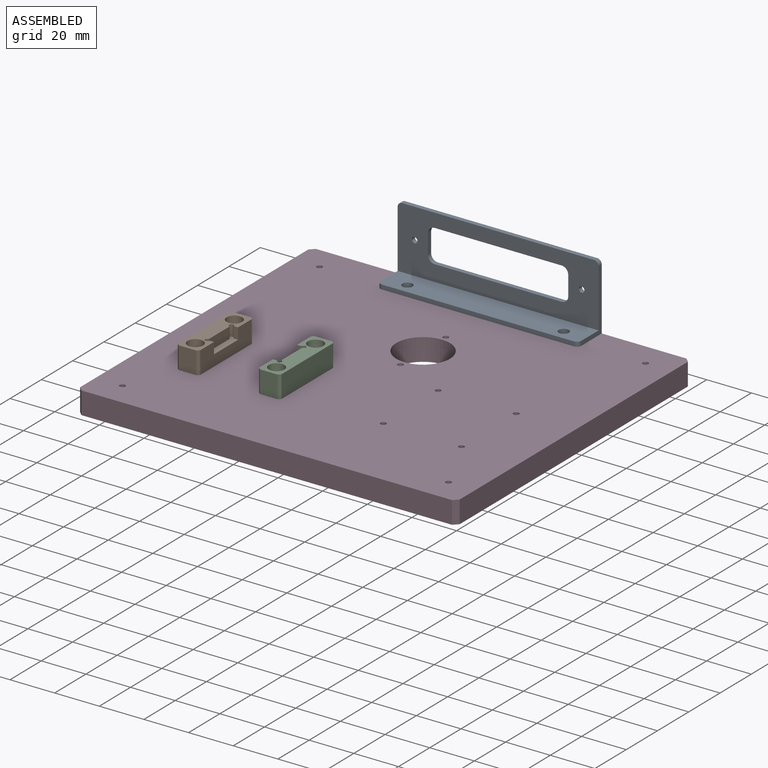
[diagram: assembled view]
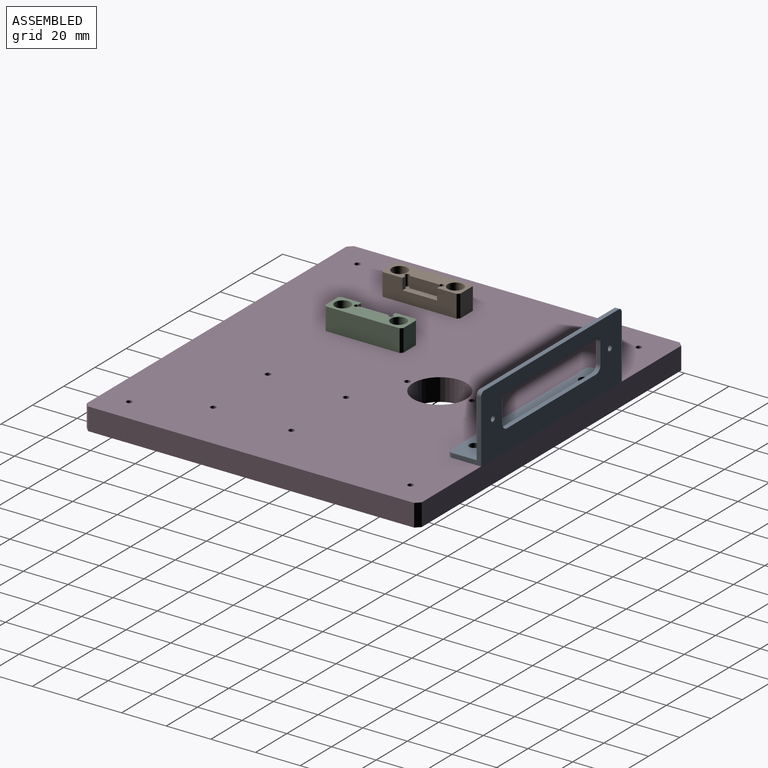
[diagram: assembled view, second angle]
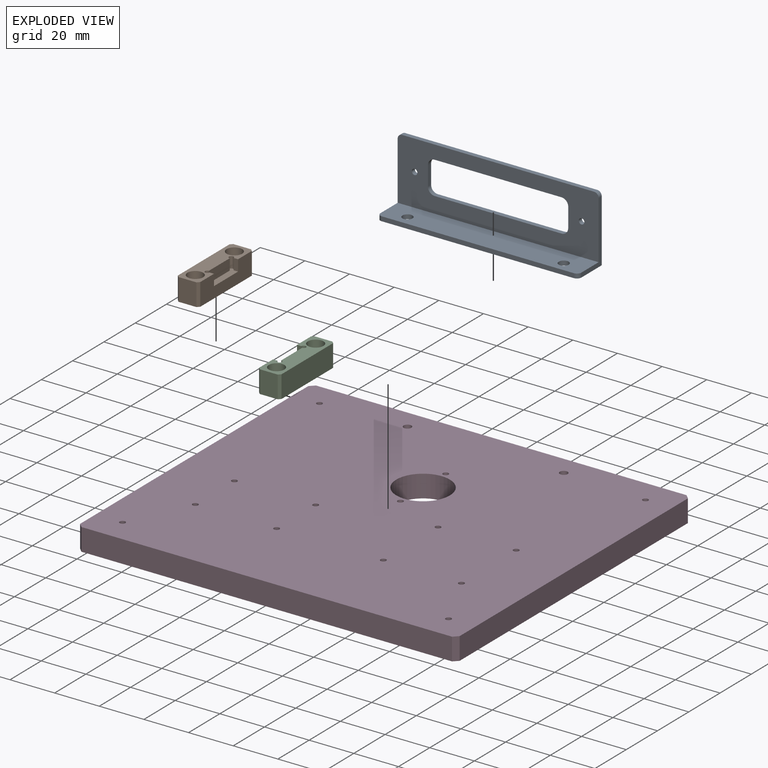
[diagram: exploded view]
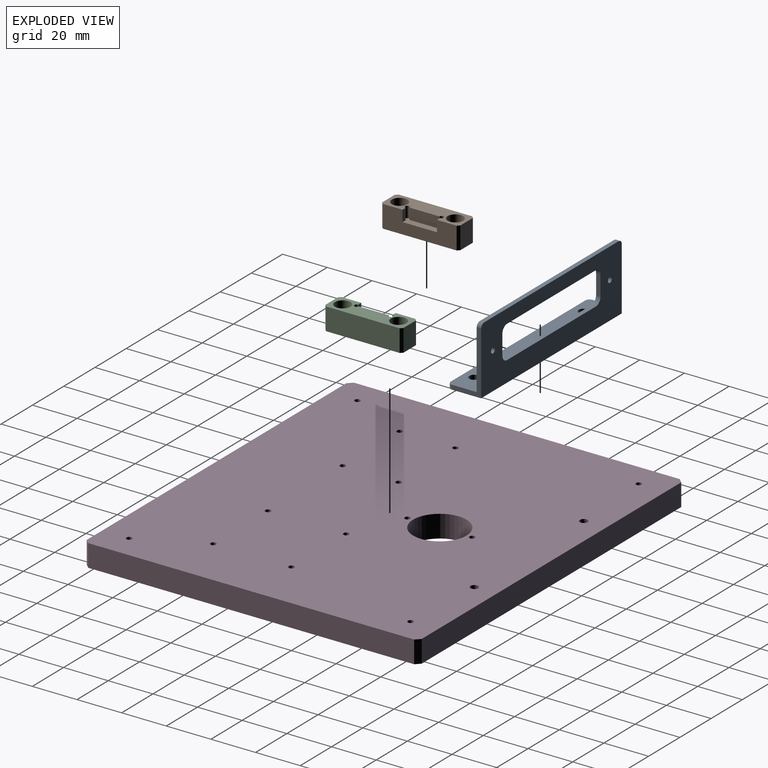
[diagram: exploded view, second angle]
ASSEMBLY  parts=4 mates=3
PART A: 24 faces, bbox 15x30x90 mm
  f0: plane 90x30mm, normal (-1,0,0), area 1773mm2, adj f2,f5,f6,f7,f8,f9,f10,f11
  f1: plane 90x28mm, normal (1,0,0), area 1593mm2, adj f4,f5,f6,f7,f8,f9,f10,f11
  f2: plane 90x15mm, normal (0,-1,0), area 1316.5mm2, adj f0,f3,f6,f7,f20,f21,f22,f23
  f3: plane 86x2mm, normal (1,0,0), area 172mm2, adj f2,f4,f22,f23
  f4: plane 90x13mm, normal (0,1,0), area 1136.5mm2, adj f1,f3,f6,f7,f20,f21,f22,f23
  f5: plane 86x2mm, normal (0,1,0), area 172mm2, adj f0,f1,f8,f9
  f6: plane 28x13mm, normal (0,0,1), area 78mm2, adj f0,f1,f2,f4,f9,f23
  f7: plane 28x13mm, normal (0,0,-1), area 78mm2, adj f0,f1,f2,f4,f8,f22
  f8: cylinder r=2mm len=2mm, axis (-1,0,0), area 6.3mm2, adj f0,f1,f5,f7
  f9: cylinder r=2mm len=2mm, axis (1,0,0), area 6.3mm2, adj f0,f1,f5,f6
  f10: plane 56.8x2mm, normal (0,-1,0), area 113.6mm2, adj f0,f1,f14,f17
  f11: plane 8.7x2mm, normal (0,0,1), area 17.4mm2, adj f0,f1,f14,f15
  f12: plane 56.8x2mm, normal (0,1,0), area 113.6mm2, adj f0,f1,f15,f16
  f13: plane 8.7x2mm, normal (0,0,-1), area 17.4mm2, adj f0,f1,f16,f17
  f14: cylinder r=3mm len=3mm, axis (-1,0,0), area 9.4mm2, adj f0,f1,f10,f11
  f15: cylinder r=3mm len=3mm, axis (1,0,0), area 9.4mm2, adj f0,f1,f11,f12
  f16: cylinder r=3mm len=3mm, axis (-1,0,0), area 9.4mm2, adj f0,f1,f12,f13
  f17: cylinder r=3mm len=3mm, axis (1,0,0), area 9.4mm2, adj f0,f1,f10,f13
  f18: cylinder r=1.25mm len=2.5mm, axis (-1,0,0), area 15.7mm2, adj f0,f1
  f19: cylinder r=1.25mm len=2.5mm, axis (-1,0,0), area 15.7mm2, adj f0,f1
  f20: cylinder r=2.25mm len=4.5mm, axis (0,1,0), area 28.3mm2, adj f2,f4
  f21: cylinder r=2.25mm len=4.5mm, axis (0,1,0), area 28.3mm2, adj f2,f4
  f22: cylinder r=2mm len=2mm, axis (0,1,0), area 6.3mm2, adj f2,f3,f4,f7
  f23: cylinder r=2mm len=2mm, axis (0,-1,0), area 6.3mm2, adj f2,f3,f4,f6
PART B: 22 faces, bbox 35x10x10 mm
  f0: plane 33x10mm, normal (0,1,0), area 253mm2, adj f4,f5,f8,f9,f16,f20,f21
  f1: plane 10x8mm, normal (-1,0,0), area 80mm2, adj f4,f5,f7,f8
  f2: plane 33x10mm, normal (0,-1,0), area 330mm2, adj f4,f5,f6,f7
  f3: plane 10x8mm, normal (1,0,0), area 80mm2, adj f4,f5,f6,f9
  f4: plane 35x10mm, normal (0,0,1), area 220.1mm2, adj f0,f1,f2,f3,f6,f7,f8,f9
  f5: plane 35x10mm, normal (0,0,-1), area 328.8mm2, adj f0,f1,f2,f3,f6,f7,f8,f9
  f6: plane 10x1mm, normal (0.71,-0.71,0), area 14.1mm2, adj f2,f3,f4,f5
  f7: plane 10x1mm, normal (-0.71,-0.71,0), area 14.1mm2, adj f1,f2,f4,f5
  f8: plane 10x1mm, normal (-0.71,0.71,0), area 14.1mm2, adj f0,f1,f4,f5
  f9: plane 10x1mm, normal (0.71,0.71,0), area 14.1mm2, adj f0,f3,f4,f5
  f10: cylinder r=1.75mm len=6.5mm, axis (0,0,1), area 71.5mm2, adj f5,f11
  f11: plane 7x7mm, normal (0,0,1), area 28.9mm2, adj f10,f12
  f12: cylinder r=3.5mm len=7mm, axis (0,0,1), area 77mm2, adj f4,f11
  f13: cylinder r=1.75mm len=6.5mm, axis (0,0,1), area 71.5mm2, adj f5,f14
  f14: plane 7x7mm, normal (0,0,1), area 28.9mm2, adj f13,f15
  f15: cylinder r=3.5mm len=7mm, axis (0,0,1), area 77mm2, adj f4,f14
  f16: plane 5x2mm, normal (1,0,0), area 10mm2, adj f0,f4,f17,f21
  f17: cylinder r=1mm len=5mm, axis (0,0,1), area 23.6mm2, adj f4,f16,f18,f21
  f18: plane 13.4x5mm, normal (0,1,0), area 67mm2, adj f4,f17,f19,f21
  f19: cylinder r=1mm len=5mm, axis (0,0,1), area 23.6mm2, adj f4,f18,f20,f21
  f20: plane 5x2mm, normal (-1,0,0), area 10mm2, adj f0,f4,f19,f21
  f21: plane 17.4x4mm, normal (0,0,1), area 50.9mm2, adj f0,f16,f17,f18,f19,f20
PART C: same geometry as B
PART D: 27 faces, bbox 170x150x10 mm
  f0: plane 146x10mm, normal (-1,0,0), area 1460mm2, adj f4,f5,f21,f23
  f1: plane 166x10mm, normal (0,-1,0), area 1660mm2, adj f4,f5,f21,f22
  f2: plane 146x10mm, normal (1,0,0), area 1460mm2, adj f4,f5,f22,f24
  f3: plane 166x10mm, normal (0,1,0), area 1660mm2, adj f4,f5,f23,f24
  f4: plane 170x150mm, normal (0,0,1), area 24951.6mm2, adj f0,f1,f2,f3,f6,f7,f8,f9
  f5: plane 170x150mm, normal (0,0,-1), area 24951.6mm2, adj f0,f1,f2,f3,f6,f7,f8,f9
  f6: cylinder r=1.25mm len=10mm, axis (0,0,1), area 78.5mm2, adj f4,f5
  f7: cylinder r=1.25mm len=10mm, axis (0,0,1), area 78.5mm2, adj f4,f5
  f8: cylinder r=1.25mm len=10mm, axis (0,0,1), area 78.5mm2, adj f4,f5
  f9: cylinder r=1.25mm len=10mm, axis (0,0,1), area 78.5mm2, adj f4,f5
  f10: cylinder r=1.25mm len=10mm, axis (0,0,1), area 78.5mm2, adj f4,f5
  f11: cylinder r=1.25mm len=10mm, axis (0,0,1), area 78.5mm2, adj f4,f5
  f12: cylinder r=1.25mm len=10mm, axis (0,0,1), area 78.5mm2, adj f4,f5
  f13: cylinder r=1.25mm len=10mm, axis (0,0,1), area 78.5mm2, adj f4,f5
  f14: cylinder r=1.25mm len=10mm, axis (0,0,1), area 78.5mm2, adj f4,f5
  f15: cylinder r=1.25mm len=10mm, axis (0,0,1), area 78.5mm2, adj f4,f5
  f16: cylinder r=1.25mm len=10mm, axis (0,0,1), area 78.5mm2, adj f4,f5
  f17: cylinder r=1.25mm len=10mm, axis (0,0,1), area 78.5mm2, adj f4,f5
  f18: cylinder r=1.25mm len=10mm, axis (0,0,1), area 78.5mm2, adj f4,f5
  f19: cylinder r=1.25mm len=10mm, axis (0,0,1), area 78.5mm2, adj f4,f5
  f20: cylinder r=12mm len=24mm, axis (0,0,1), area 754mm2, adj f4,f5
  f21: plane 10x2mm, normal (-0.71,-0.71,0), area 28.3mm2, adj f0,f1,f4,f5
  f22: plane 10x2mm, normal (0.71,-0.71,0), area 28.3mm2, adj f1,f2,f4,f5
  f23: plane 10x2mm, normal (-0.71,0.71,0), area 28.3mm2, adj f0,f3,f4,f5
  f24: plane 10x2mm, normal (0.71,0.71,0), area 28.3mm2, adj f2,f3,f4,f5
  f25: cylinder r=1.75mm len=10mm, axis (0,0,1), area 110mm2, adj f4,f5
  f26: cylinder r=1.75mm len=10mm, axis (0,0,1), area 110mm2, adj f4,f5
PLACE A rot(axis=(0.58,-0.58,-0.58),120deg) t=(130,150,10)mm
PLACE B rot(axis=(0,0,-1),90deg) t=(20,70,10)mm
PLACE C rot(axis=(0,0,1),90deg) t=(66.4,35,10)mm
PLACE D at identity fixed
MATE fastened A.f20 <-> D.f26  axis (0,0,-1) through (50,140,10)mm
MATE fastened C.f10 <-> D.f11  axis (0,0,-1) through (61.4,65,10)mm
MATE fastened B.f13 <-> D.f12  axis (0,0,-1) through (25,65,10)mm
